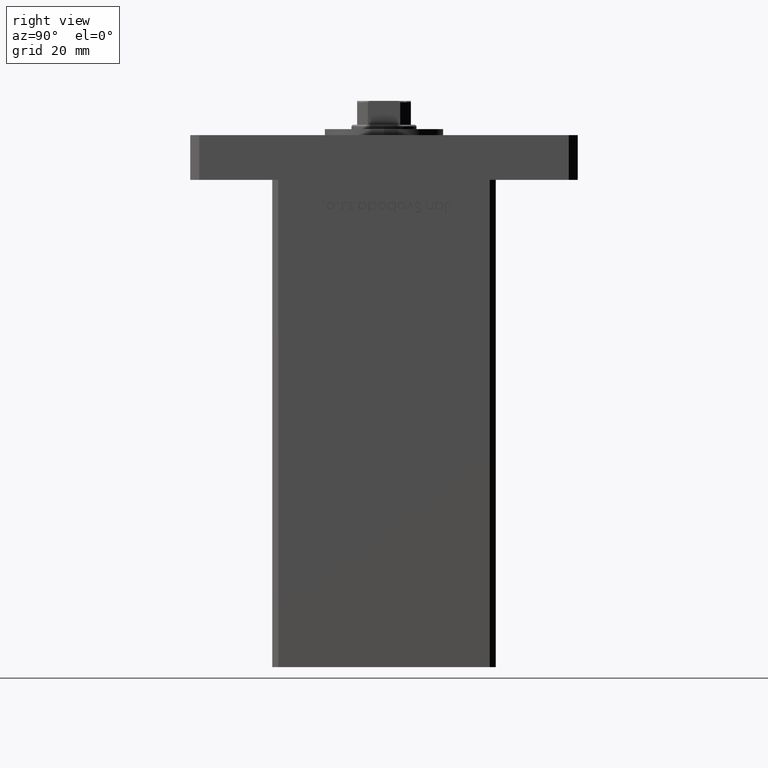
[diagram: clean part render]
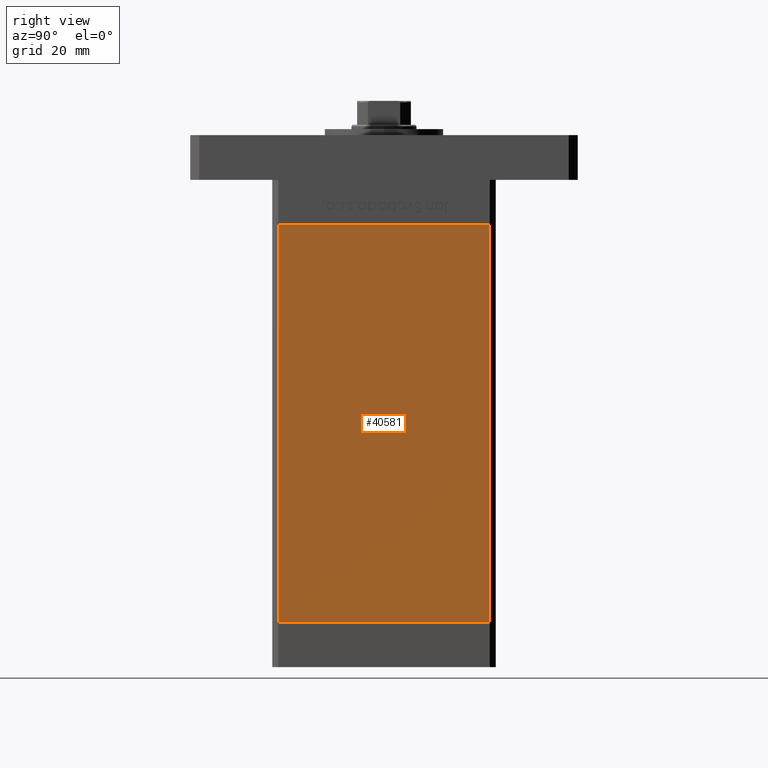
[diagram: same view with one face highlighted and labeled with its STEP entity id]
A machine part, right view. The second image highlights one B-rep face of the part: STEP entity #40581.
In plain terms, the highlighted planar face has unit normal (1, -0, 0).
Its self-contained STEP definition (entity closure, byte-faithful):
#979 = VECTOR ( 'NONE', #20512, 1000.000000000000000 ) ;
#1048 = PLANE ( 'NONE',  #21088 ) ;
#3853 = CARTESIAN_POINT ( 'NONE',  ( 42.50000000000000711, 35.50000000000001421, 133.5000000000000000 ) ) ;
#4340 = ORIENTED_EDGE ( 'NONE', *, *, #14041, .T. ) ;
#6385 = CARTESIAN_POINT ( 'NONE',  ( 42.49999999999998579, -35.50000000000000711, 0.000000000000000000 ) ) ;
#7414 = EDGE_LOOP ( 'NONE', ( #38527, #37874, #49226, #4340 ) ) ;
#7537 = EDGE_CURVE ( 'NONE', #20579, #14231, #50435, .T. ) ;
#9063 = LINE ( 'NONE', #42168, #17439 ) ;
#11767 = VERTEX_POINT ( 'NONE', #30836 ) ;
#14041 = EDGE_CURVE ( 'NONE', #32119, #14231, #36560, .T. ) ;
#14231 = VERTEX_POINT ( 'NONE', #6385 ) ;
#17439 = VECTOR ( 'NONE', #21526, 1000.000000000000000 ) ;
#19019 = CARTESIAN_POINT ( 'NONE',  ( 42.50000000000000711, 35.50000000000001421, 0.000000000000000000 ) ) ;
#20380 = DIRECTION ( 'NONE',  ( -0.000000000000000000, -0.000000000000000000, -1.000000000000000000 ) ) ;
#20512 = DIRECTION ( 'NONE',  ( -0.000000000000000000, -0.000000000000000000, -1.000000000000000000 ) ) ;
#20579 = VERTEX_POINT ( 'NONE', #19019 ) ;
#21088 = AXIS2_PLACEMENT_3D ( 'NONE', #38215, #42834, #46899 ) ;
#21526 = DIRECTION ( 'NONE',  ( -2.931927001650941360E-16, -1.000000000000000000, 0.000000000000000000 ) ) ;
#24463 = LINE ( 'NONE', #3853, #33199 ) ;
#29810 = FACE_OUTER_BOUND ( 'NONE', #7414, .T. ) ;
#30836 = CARTESIAN_POINT ( 'NONE',  ( 42.50000000000000711, 35.50000000000001421, 133.5000000000000000 ) ) ;
#30938 = EDGE_CURVE ( 'NONE', #11767, #32119, #9063, .T. ) ;
#32119 = VERTEX_POINT ( 'NONE', #44581 ) ;
#33013 = CARTESIAN_POINT ( 'NONE',  ( 42.49999999999998579, -35.50000000000000711, 133.5000000000000000 ) ) ;
#33199 = VECTOR ( 'NONE', #20380, 1000.000000000000000 ) ;
#34726 = VECTOR ( 'NONE', #52289, 1000.000000000000000 ) ;
#35260 = EDGE_CURVE ( 'NONE', #11767, #20579, #24463, .T. ) ;
#36560 = LINE ( 'NONE', #33013, #979 ) ;
#37874 = ORIENTED_EDGE ( 'NONE', *, *, #35260, .F. ) ;
#38215 = CARTESIAN_POINT ( 'NONE',  ( 42.50000000000000711, 35.50000000000001421, 133.5000000000000000 ) ) ;
#38527 = ORIENTED_EDGE ( 'NONE', *, *, #7537, .F. ) ;
#40098 = CARTESIAN_POINT ( 'NONE',  ( 42.50000000000000711, 35.50000000000001421, 0.000000000000000000 ) ) ;
#40581 = ADVANCED_FACE ( 'NONE', ( #29810 ), #1048, .T. ) ;
#42168 = CARTESIAN_POINT ( 'NONE',  ( 42.50000000000000711, 35.50000000000001421, 133.5000000000000000 ) ) ;
#42834 = DIRECTION ( 'NONE',  ( 1.000000000000000000, -2.931927001650941360E-16, 0.000000000000000000 ) ) ;
#44581 = CARTESIAN_POINT ( 'NONE',  ( 42.49999999999998579, -35.50000000000000711, 133.5000000000000000 ) ) ;
#46899 = DIRECTION ( 'NONE',  ( 2.931927001650941360E-16, 1.000000000000000000, 0.000000000000000000 ) ) ;
#49226 = ORIENTED_EDGE ( 'NONE', *, *, #30938, .T. ) ;
#50435 = LINE ( 'NONE', #40098, #34726 ) ;
#52289 = DIRECTION ( 'NONE',  ( -2.931927001650941360E-16, -1.000000000000000000, 0.000000000000000000 ) ) ;